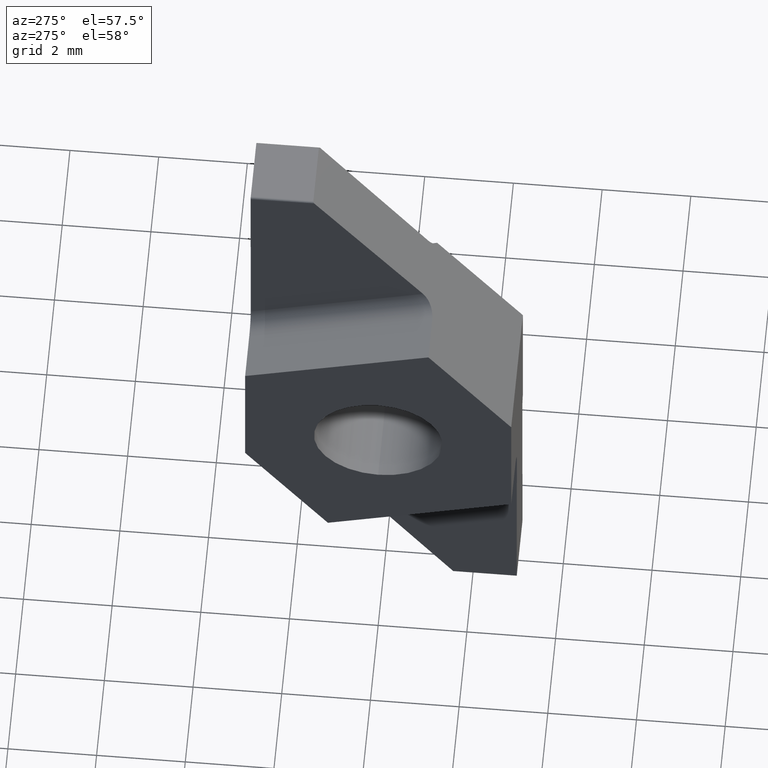
[diagram: clean part render]
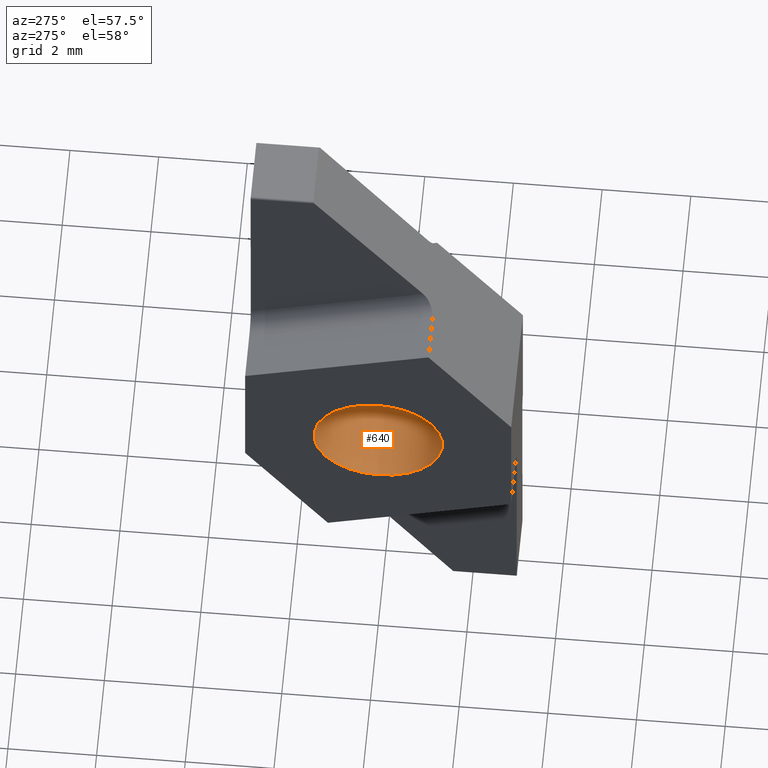
[diagram: same view with one face highlighted and labeled with its STEP entity id]
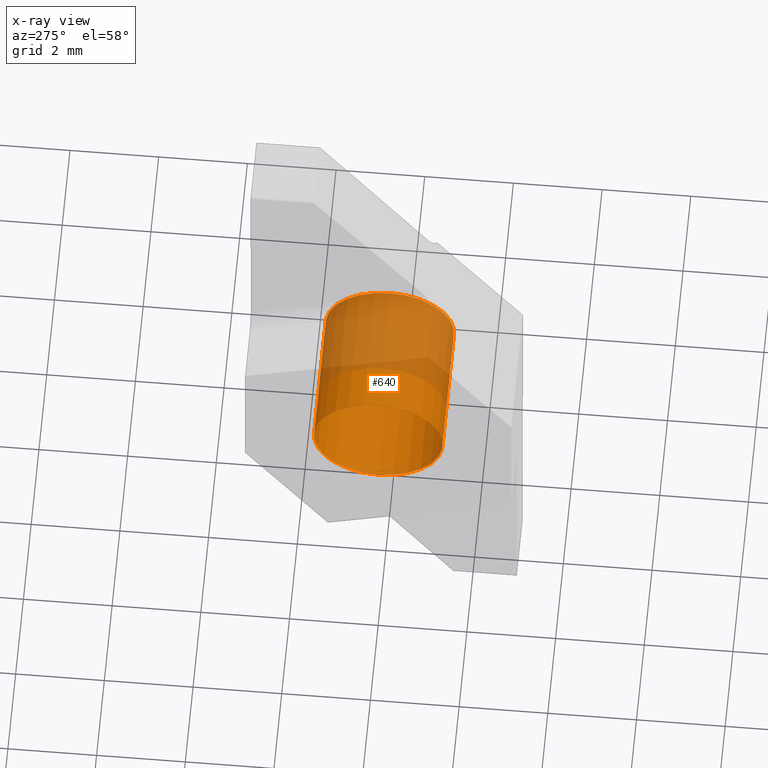
[diagram: x-ray of the same camera — body ghosted, the highlighted face saturated]
A machine part, auxiliary view. The second image highlights one B-rep face of the part: STEP entity #640.
The next image is the same camera in x-ray: the body ghosted, the highlighted face saturated — about 46% of this face is hidden behind the body in this view.
In plain terms, the highlighted cylindrical surface (bore or boss wall) has radius 1.45 mm, axis along (-1, 0, 0).
Its self-contained STEP definition (entity closure, byte-faithful):
#21 = EDGE_LOOP ( 'NONE', ( #472 ) ) ;
#64 = CARTESIAN_POINT ( 'NONE',  ( 0.000000000000000000, 0.000000000000000000, 0.000000000000000000 ) ) ;
#79 = CYLINDRICAL_SURFACE ( 'NONE', #690, 1.449999999999999289 ) ;
#86 = CIRCLE ( 'NONE', #539, 1.449999999999999067 ) ;
#96 = CARTESIAN_POINT ( 'NONE',  ( 3.000000000000000000, 0.000000000000000000, -1.449999999999999067 ) ) ;
#110 = CARTESIAN_POINT ( 'NONE',  ( 3.000000000000000000, 0.000000000000000000, 0.000000000000000000 ) ) ;
#257 = CIRCLE ( 'NONE', #272, 1.449999999999999512 ) ;
#272 = AXIS2_PLACEMENT_3D ( 'NONE', #684, #588, #706 ) ;
#273 = EDGE_LOOP ( 'NONE', ( #277 ) ) ;
#277 = ORIENTED_EDGE ( 'NONE', *, *, #462, .F. ) ;
#296 = VERTEX_POINT ( 'NONE', #526 ) ;
#322 = FACE_OUTER_BOUND ( 'NONE', #273, .T. ) ;
#399 = VERTEX_POINT ( 'NONE', #96 ) ;
#462 = EDGE_CURVE ( 'NONE', #399, #399, #86, .T. ) ;
#472 = ORIENTED_EDGE ( 'NONE', *, *, #726, .T. ) ;
#526 = CARTESIAN_POINT ( 'NONE',  ( -1.224646799147353885E-17, 0.000000000000000000, -1.449999999999999512 ) ) ;
#539 = AXIS2_PLACEMENT_3D ( 'NONE', #110, #774, #573 ) ;
#573 = DIRECTION ( 'NONE',  ( 0.000000000000000000, 0.000000000000000000, -1.000000000000000000 ) ) ;
#576 = FACE_OUTER_BOUND ( 'NONE', #21, .T. ) ;
#588 = DIRECTION ( 'NONE',  ( -1.000000000000000000, 0.000000000000000000, 0.000000000000000000 ) ) ;
#622 = DIRECTION ( 'NONE',  ( -1.000000000000000000, 0.000000000000000000, 0.000000000000000000 ) ) ;
#640 = ADVANCED_FACE ( 'NONE', ( #322, #576 ), #79, .F. ) ;
#684 = CARTESIAN_POINT ( 'NONE',  ( -1.224646799147353885E-17, 0.000000000000000000, 0.000000000000000000 ) ) ;
#690 = AXIS2_PLACEMENT_3D ( 'NONE', #64, #622, #736 ) ;
#706 = DIRECTION ( 'NONE',  ( 0.000000000000000000, 0.000000000000000000, -1.000000000000000000 ) ) ;
#726 = EDGE_CURVE ( 'NONE', #296, #296, #257, .T. ) ;
#736 = DIRECTION ( 'NONE',  ( 0.000000000000000000, 0.000000000000000000, -1.000000000000000000 ) ) ;
#774 = DIRECTION ( 'NONE',  ( -1.000000000000000000, 0.000000000000000000, 0.000000000000000000 ) ) ;